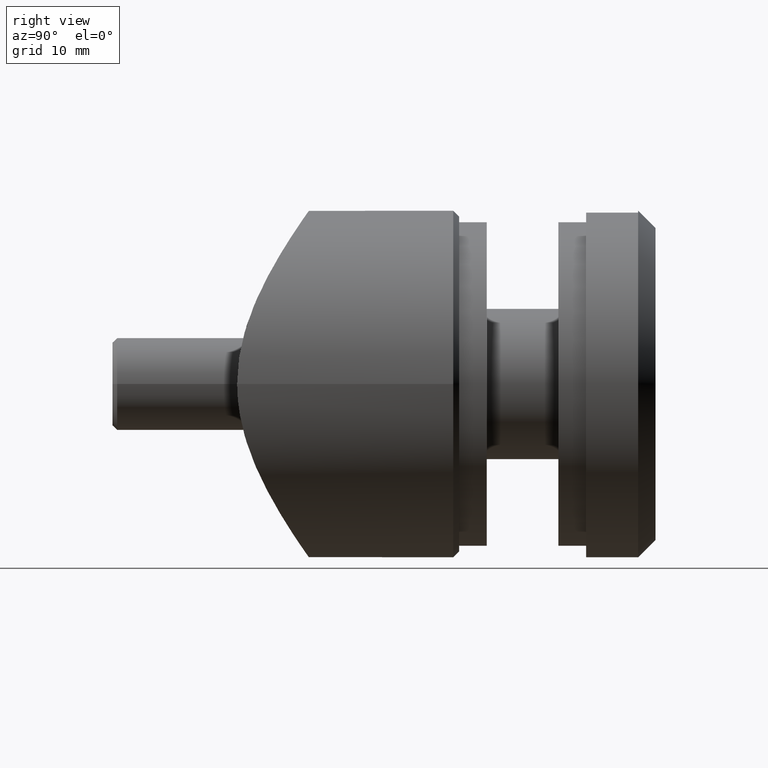
[diagram: clean part render]
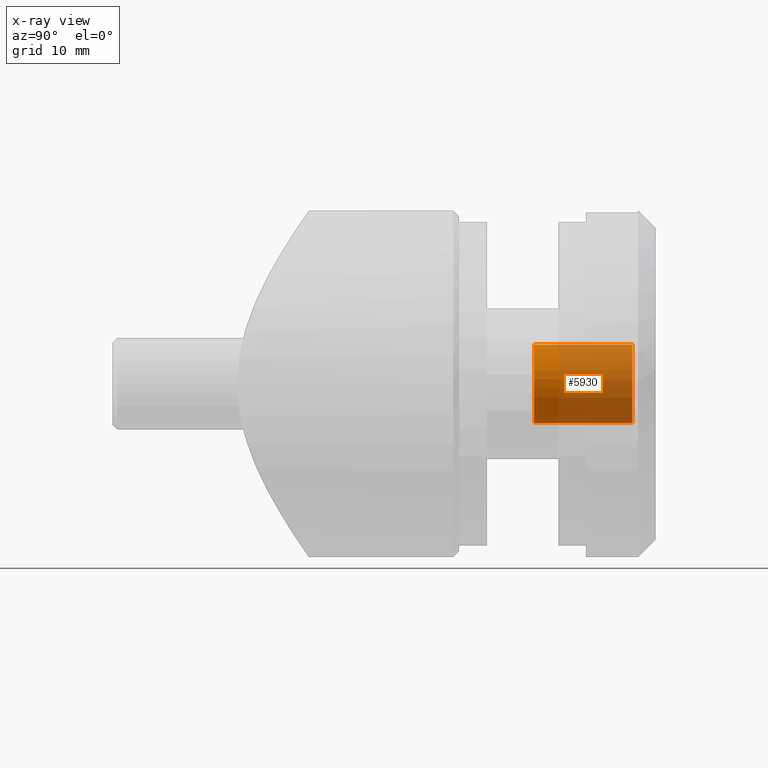
[diagram: x-ray — body ghosted, one internal face saturated and labeled with its STEP entity id]
A machine part, right view, then the same camera in x-ray: the body is ghosted and one INTERNAL B-rep face — a face not visible from any outside direction — is saturated and labeled: STEP entity #5930.
In plain terms, the highlighted cylindrical surface (partial cylindrical patch) has radius 3.4 mm, axis along (-0, -1, -0).
Its self-contained STEP definition (entity closure, byte-faithful):
#827 = EDGE_CURVE ( 'NONE', #3224, #13738, #11053, .T. ) ;
#938 = DIRECTION ( 'NONE',  ( -0.000000000000000000, -1.000000000000000000, -0.000000000000000000 ) ) ;
#943 = AXIS2_PLACEMENT_3D ( 'NONE', #8520, #13142, #4168 ) ;
#1169 = CARTESIAN_POINT ( 'NONE',  ( 0.000000000000000000, 0.000000000000000000, -3.399999999999998135 ) ) ;
#1478 = CARTESIAN_POINT ( 'NONE',  ( 0.000000000000000000, 9.000000000000001776, -3.399999999999997691 ) ) ;
#1608 = CARTESIAN_POINT ( 'NONE',  ( 4.163799117100998094E-16, 9.000000000000001776, 3.399999999999997691 ) ) ;
#1972 = VECTOR ( 'NONE', #7425, 1000.000000000000000 ) ;
#2340 = DIRECTION ( 'NONE',  ( -0.000000000000000000, -1.000000000000000000, -0.000000000000000000 ) ) ;
#2727 = FACE_OUTER_BOUND ( 'NONE', #12260, .T. ) ;
#2789 = CARTESIAN_POINT ( 'NONE',  ( 4.163799117100998094E-16, 0.5000000000000043299, 3.399999999999998135 ) ) ;
#3224 = VERTEX_POINT ( 'NONE', #12510 ) ;
#4168 = DIRECTION ( 'NONE',  ( 0.000000000000000000, 0.000000000000000000, -1.000000000000000000 ) ) ;
#4437 = ORIENTED_EDGE ( 'NONE', *, *, #6362, .T. ) ;
#5004 = VERTEX_POINT ( 'NONE', #1478 ) ;
#5221 = ORIENTED_EDGE ( 'NONE', *, *, #9130, .F. ) ;
#5748 = AXIS2_PLACEMENT_3D ( 'NONE', #5922, #8213, #5875 ) ;
#5875 = DIRECTION ( 'NONE',  ( 0.000000000000000000, 0.000000000000000000, -1.000000000000000000 ) ) ;
#5922 = CARTESIAN_POINT ( 'NONE',  ( 0.000000000000000000, 0.5000000000000043299, 0.000000000000000000 ) ) ;
#5930 = ADVANCED_FACE ( 'NONE', ( #2727 ), #6566, .F. ) ;
#6362 = EDGE_CURVE ( 'NONE', #5004, #3224, #10016, .T. ) ;
#6380 = EDGE_CURVE ( 'NONE', #5004, #7550, #9864, .T. ) ;
#6566 = CYLINDRICAL_SURFACE ( 'NONE', #943, 3.399999999999998135 ) ;
#6707 = VECTOR ( 'NONE', #938, 1000.000000000000000 ) ;
#7323 = CARTESIAN_POINT ( 'NONE',  ( 4.163799117100998094E-16, 0.000000000000000000, 3.399999999999998135 ) ) ;
#7425 = DIRECTION ( 'NONE',  ( -0.000000000000000000, -1.000000000000000000, -0.000000000000000000 ) ) ;
#7550 = VERTEX_POINT ( 'NONE', #1608 ) ;
#7596 = ORIENTED_EDGE ( 'NONE', *, *, #827, .T. ) ;
#8116 = ORIENTED_EDGE ( 'NONE', *, *, #6380, .F. ) ;
#8213 = DIRECTION ( 'NONE',  ( 0.000000000000000000, -1.000000000000000000, 0.000000000000000000 ) ) ;
#8520 = CARTESIAN_POINT ( 'NONE',  ( 0.000000000000000000, 0.000000000000000000, 0.000000000000000000 ) ) ;
#9067 = LINE ( 'NONE', #7323, #1972 ) ;
#9130 = EDGE_CURVE ( 'NONE', #7550, #13738, #9067, .T. ) ;
#9778 = AXIS2_PLACEMENT_3D ( 'NONE', #9818, #2340, #10840 ) ;
#9818 = CARTESIAN_POINT ( 'NONE',  ( 0.000000000000000000, 9.000000000000001776, 0.000000000000000000 ) ) ;
#9864 = CIRCLE ( 'NONE', #9778, 3.399999999999997691 ) ;
#10016 = LINE ( 'NONE', #1169, #6707 ) ;
#10840 = DIRECTION ( 'NONE',  ( 0.000000000000000000, 0.000000000000000000, -1.000000000000000000 ) ) ;
#11053 = CIRCLE ( 'NONE', #5748, 3.399999999999998135 ) ;
#12260 = EDGE_LOOP ( 'NONE', ( #5221, #8116, #4437, #7596 ) ) ;
#12510 = CARTESIAN_POINT ( 'NONE',  ( 0.000000000000000000, 0.5000000000000043299, -3.399999999999998135 ) ) ;
#13142 = DIRECTION ( 'NONE',  ( -0.000000000000000000, -1.000000000000000000, -0.000000000000000000 ) ) ;
#13738 = VERTEX_POINT ( 'NONE', #2789 ) ;